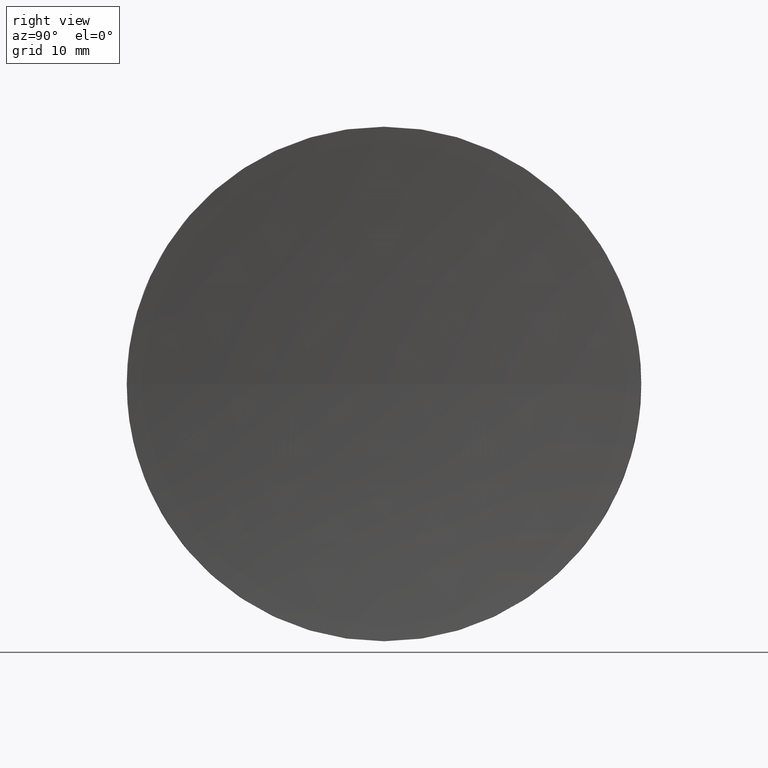
[diagram: clean part render]
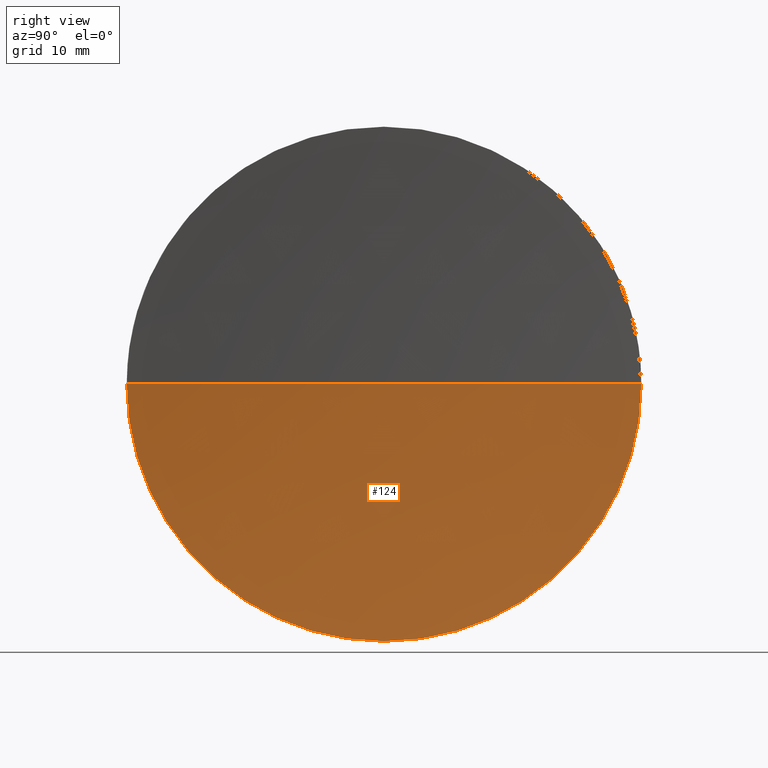
[diagram: same view with one face highlighted and labeled with its STEP entity id]
A machine part, right view. The second image highlights one B-rep face of the part: STEP entity #124.
In plain terms, the highlighted spherical surface has radius 400 mm.
Its self-contained STEP definition (entity closure, byte-faithful):
#5 = VERTEX_POINT ( 'NONE', #6 ) ;
#6 = CARTESIAN_POINT ( 'NONE',  ( 239.1996119002084500, 138.7560422467451000, 0.0000000000000000000 ) ) ;
#10 = AXIS2_PLACEMENT_3D ( 'NONE', #80, #78, #130 ) ;
#15 = EDGE_CURVE ( 'NONE', #20, #163, #88, .T. ) ;
#17 = AXIS2_PLACEMENT_3D ( 'NONE', #157, #63, #21 ) ;
#18 = CIRCLE ( 'NONE', #172, 37.50000000000000700 ) ;
#20 = VERTEX_POINT ( 'NONE', #37 ) ;
#21 = DIRECTION ( 'NONE',  ( 0.0000000000000000000, 0.0000000000000000000, 1.000000000000000000 ) ) ;
#37 = CARTESIAN_POINT ( 'NONE',  ( 240.9613038483586500, 176.2560422467447800, 4.592425496802536500E-015 ) ) ;
#38 = CARTESIAN_POINT ( 'NONE',  ( 639.1996119002084200, 138.7560422467451200, 0.0000000000000000000 ) ) ;
#43 = DIRECTION ( 'NONE',  ( 0.0000000000000000000, -1.000000000000000000, 0.0000000000000000000 ) ) ;
#48 = ORIENTED_EDGE ( 'NONE', *, *, #15, .F. ) ;
#56 = DIRECTION ( 'NONE',  ( 0.0000000000000000000, 0.0000000000000000000, 1.000000000000000000 ) ) ;
#58 = CIRCLE ( 'NONE', #10, 400.0000000000000000 ) ;
#61 = VERTEX_POINT ( 'NONE', #147 ) ;
#63 = DIRECTION ( 'NONE',  ( -1.000000000000000000, -0.0000000000000000000, -0.0000000000000000000 ) ) ;
#66 = DIRECTION ( 'NONE',  ( 0.0000000000000000000, -1.224646799147353200E-016, 1.000000000000000000 ) ) ;
#74 = SPHERICAL_SURFACE ( 'NONE', #153, 400.0000000000000000 ) ;
#78 = DIRECTION ( 'NONE',  ( 0.0000000000000000000, 0.0000000000000000000, -1.000000000000000000 ) ) ;
#79 = CARTESIAN_POINT ( 'NONE',  ( 240.9613038483586300, 138.7560422467448700, 0.0000000000000000000 ) ) ;
#80 = CARTESIAN_POINT ( 'NONE',  ( 639.1996119002084200, 138.7560422467451200, 0.0000000000000000000 ) ) ;
#81 = CARTESIAN_POINT ( 'NONE',  ( 240.9613038483586300, 138.7560422467448700, -37.50000000000000700 ) ) ;
#83 = EDGE_LOOP ( 'NONE', ( #48, #112, #168, #100 ) ) ;
#88 = CIRCLE ( 'NONE', #17, 37.50000000000000700 ) ;
#89 = FACE_OUTER_BOUND ( 'NONE', #83, .T. ) ;
#90 = EDGE_CURVE ( 'NONE', #61, #5, #58, .T. ) ;
#100 = ORIENTED_EDGE ( 'NONE', *, *, #146, .F. ) ;
#112 = ORIENTED_EDGE ( 'NONE', *, *, #123, .T. ) ;
#115 = CARTESIAN_POINT ( 'NONE',  ( 639.1996119002084200, 138.7560422467451200, 0.0000000000000000000 ) ) ;
#116 = DIRECTION ( 'NONE',  ( 0.0000000000000000000, 0.0000000000000000000, 1.000000000000000000 ) ) ;
#123 = EDGE_CURVE ( 'NONE', #20, #5, #143, .T. ) ;
#124 = ADVANCED_FACE ( 'NONE', ( #89 ), #74, .F. ) ;
#129 = DIRECTION ( 'NONE',  ( -1.000000000000000000, -0.0000000000000000000, -0.0000000000000000000 ) ) ;
#130 = DIRECTION ( 'NONE',  ( -1.000000000000000000, 0.0000000000000000000, 0.0000000000000000000 ) ) ;
#131 = AXIS2_PLACEMENT_3D ( 'NONE', #115, #66, #161 ) ;
#143 = CIRCLE ( 'NONE', #131, 400.0000000000000000 ) ;
#146 = EDGE_CURVE ( 'NONE', #163, #61, #18, .T. ) ;
#147 = CARTESIAN_POINT ( 'NONE',  ( 240.9613038483586500, 101.2560422467452000, 0.0000000000000000000 ) ) ;
#153 = AXIS2_PLACEMENT_3D ( 'NONE', #38, #116, #43 ) ;
#157 = CARTESIAN_POINT ( 'NONE',  ( 240.9613038483586300, 138.7560422467448700, 0.0000000000000000000 ) ) ;
#161 = DIRECTION ( 'NONE',  ( 0.0000000000000000000, -1.000000000000000000, -1.224646799147353200E-016 ) ) ;
#163 = VERTEX_POINT ( 'NONE', #81 ) ;
#168 = ORIENTED_EDGE ( 'NONE', *, *, #90, .F. ) ;
#172 = AXIS2_PLACEMENT_3D ( 'NONE', #79, #129, #56 ) ;